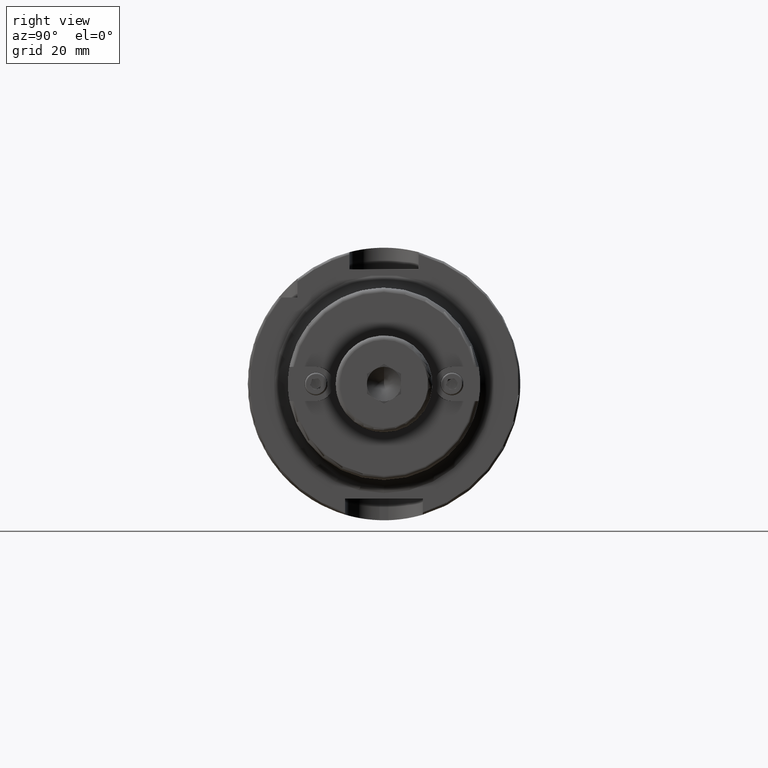
[diagram: clean part render]
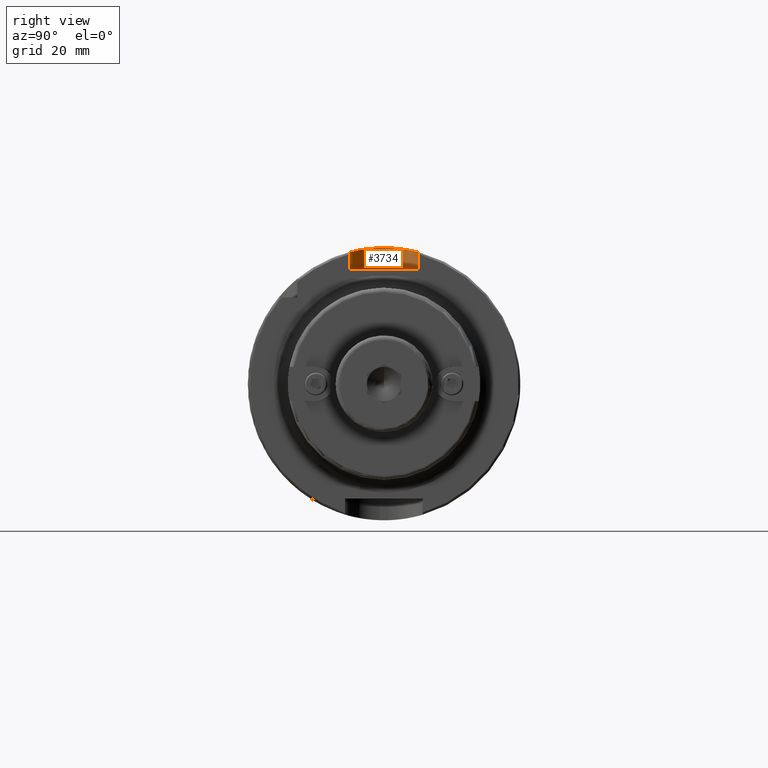
[diagram: same view with one face highlighted and labeled with its STEP entity id]
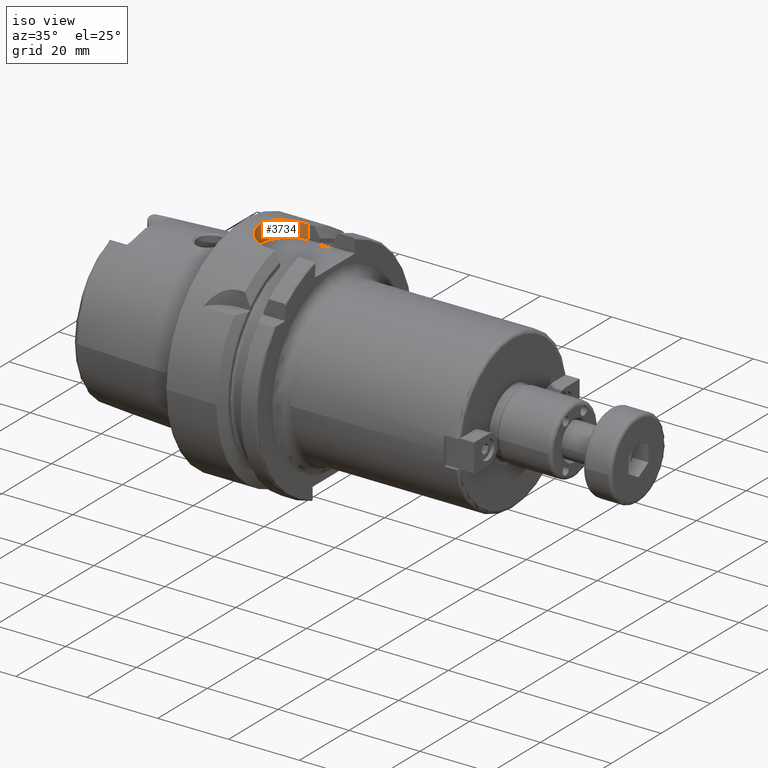
[diagram: same view with one face highlighted and labeled with its STEP entity id]
A machine part, right view. The second image highlights one B-rep face of the part: STEP entity #3734.
A second angle (iso view) of the same face is appended — the face is thin or edge-on in the first view.
In plain terms, the highlighted cylindrical surface (edge-blend (fillet) strip) has radius 8 mm, axis along (0, 0, 1).
Its self-contained STEP definition (entity closure, byte-faithful):
#676=B_SPLINE_CURVE_WITH_KNOTS('',3,(#7057,#7058,#7059,#7060,#7061,#7062,
#7063,#7064,#7065,#7066,#7067,#7068,#7069,#7070,#7071,#7072,#7073,#7074),
 .UNSPECIFIED.,.F.,.F.,(4,2,2,2,2,2,2,2,4),(0.,0.302805879979318,0.605611759958635,
0.908372461246501,1.21113316253437,1.51389386382223,1.8166545651101,2.11946044508942,
2.42226632506874),.UNSPECIFIED.);
#813=CYLINDRICAL_SURFACE('',#4208,8.);
#931=FACE_OUTER_BOUND('',#1132,.T.);
#1132=EDGE_LOOP('',(#3167,#3168,#3169,#3170));
#1351=LINE('',#7049,#1545);
#1353=LINE('',#7077,#1547);
#1545=VECTOR('',#5014,10.);
#1547=VECTOR('',#5020,10.);
#1730=CIRCLE('',#4209,8.);
#2066=VERTEX_POINT('',#7046);
#2067=VERTEX_POINT('',#7048);
#2069=VERTEX_POINT('',#7056);
#2070=VERTEX_POINT('',#7075);
#2469=EDGE_CURVE('',#2066,#2067,#1351,.T.);
#2472=EDGE_CURVE('',#2067,#2069,#676,.T.);
#2473=EDGE_CURVE('',#2070,#2066,#1730,.T.);
#2474=EDGE_CURVE('',#2070,#2069,#1353,.T.);
#3167=ORIENTED_EDGE('',*,*,#2472,.F.);
#3168=ORIENTED_EDGE('',*,*,#2469,.F.);
#3169=ORIENTED_EDGE('',*,*,#2473,.F.);
#3170=ORIENTED_EDGE('',*,*,#2474,.T.);
#3734=ADVANCED_FACE('',(#931),#813,.F.);
#4208=AXIS2_PLACEMENT_3D('',#7055,#5016,#5017);
#4209=AXIS2_PLACEMENT_3D('',#7076,#5018,#5019);
#5014=DIRECTION('',(0.,0.,1.));
#5016=DIRECTION('center_axis',(0.,0.,1.));
#5017=DIRECTION('ref_axis',(0.,1.,0.));
#5018=DIRECTION('center_axis',(0.,0.,1.));
#5019=DIRECTION('ref_axis',(0.,1.,0.));
#5020=DIRECTION('',(0.,0.,1.));
#7046=CARTESIAN_POINT('',(13.,-8.,26.5));
#7048=CARTESIAN_POINT('',(13.,-8.,30.4671954731642));
#7049=CARTESIAN_POINT('',(13.,-8.,26.5));
#7055=CARTESIAN_POINT('Origin',(13.,0.,26.5));
#7056=CARTESIAN_POINT('',(13.,8.,30.4671954731642));
#7057=CARTESIAN_POINT('Ctrl Pts',(13.,-8.,30.4671954731643));
#7058=CARTESIAN_POINT('Ctrl Pts',(11.9906470667356,-8.,30.4671954731643));
#7059=CARTESIAN_POINT('Ctrl Pts',(10.9172075930168,-7.79737202490167,30.5225803085525));
#7060=CARTESIAN_POINT('Ctrl Pts',(8.94758399331801,-6.97961067526075,30.719895002943));
#7061=CARTESIAN_POINT('Ctrl Pts',(8.05099322370438,-6.36470172268915,30.8586830127239));
#7062=CARTESIAN_POINT('Ctrl Pts',(6.63540388828045,-4.94911238726521,31.1170994373341));
#7063=CARTESIAN_POINT('Ctrl Pts',(6.02041263015313,-4.05247770930662,31.2539072689014));
#7064=CARTESIAN_POINT('Ctrl Pts',(5.20259114887399,-2.08269813865027,31.4466478906396));
#7065=CARTESIAN_POINT('Ctrl Pts',(5.,-1.00920233762622,31.5));
#7066=CARTESIAN_POINT('Ctrl Pts',(5.,1.00920233762622,31.5));
#7067=CARTESIAN_POINT('Ctrl Pts',(5.20259114887399,2.08269813865027,31.4466478906396));
#7068=CARTESIAN_POINT('Ctrl Pts',(6.02041263015313,4.05247770930662,31.2539072689014));
#7069=CARTESIAN_POINT('Ctrl Pts',(6.63540388828045,4.94911238726521,31.1170994373341));
#7070=CARTESIAN_POINT('Ctrl Pts',(8.05099322370439,6.36470172268915,30.8586830127239));
#7071=CARTESIAN_POINT('Ctrl Pts',(8.94758399331801,6.97961067526075,30.719895002943));
#7072=CARTESIAN_POINT('Ctrl Pts',(10.9172075930168,7.79737202490167,30.5225803085525));
#7073=CARTESIAN_POINT('Ctrl Pts',(11.9906470667356,8.,30.4671954731643));
#7074=CARTESIAN_POINT('Ctrl Pts',(13.,8.,30.4671954731643));
#7075=CARTESIAN_POINT('',(13.,8.,26.5));
#7076=CARTESIAN_POINT('Origin',(13.,0.,26.5));
#7077=CARTESIAN_POINT('',(13.,8.,26.5));